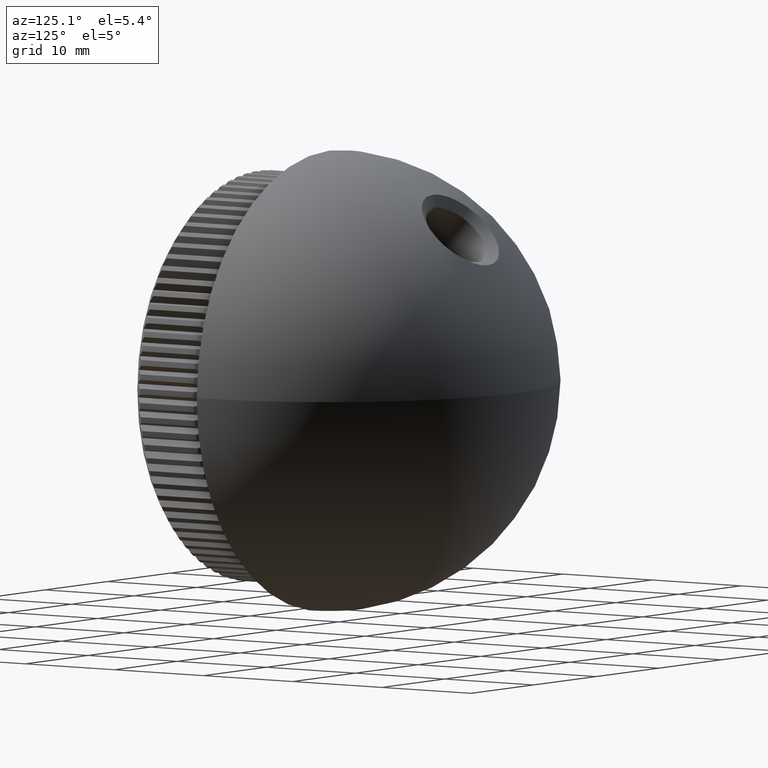
[diagram: clean part render]
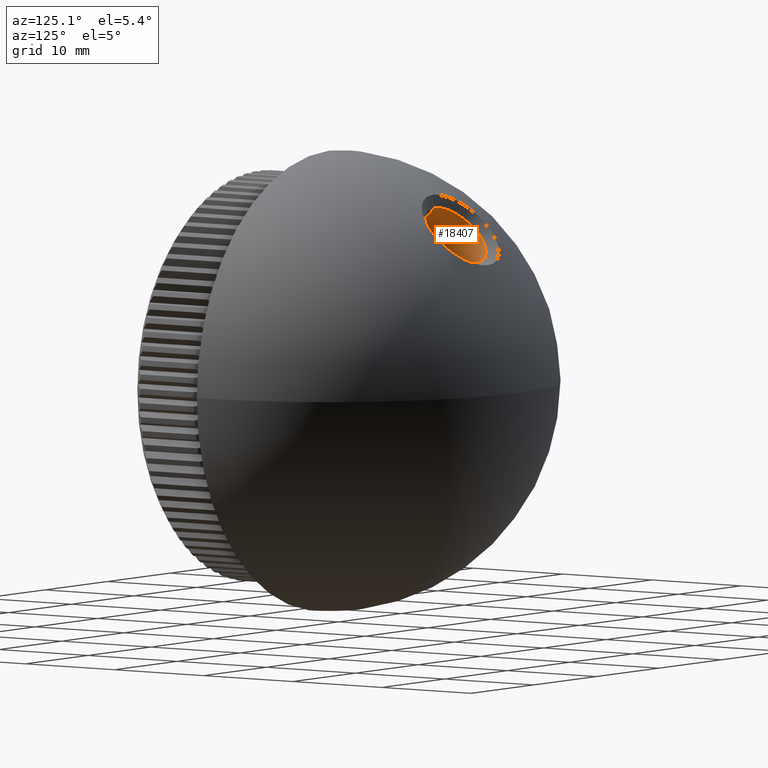
[diagram: same view with one face highlighted and labeled with its STEP entity id]
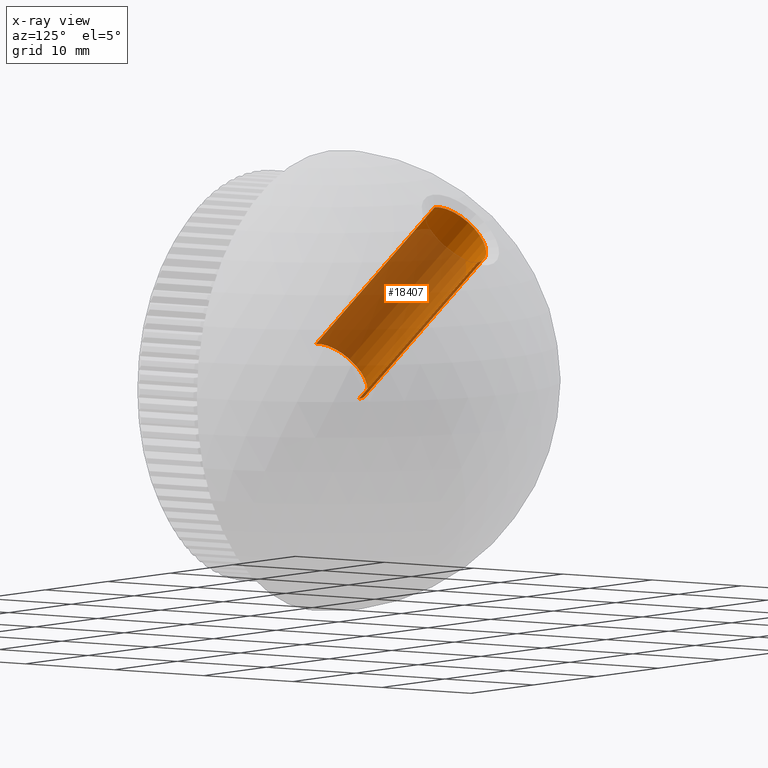
[diagram: x-ray of the same camera — body ghosted, the highlighted face saturated]
A machine part, auxiliary view. The second image highlights one B-rep face of the part: STEP entity #18407.
The next image is the same camera in x-ray: the body ghosted, the highlighted face saturated — about 83% of this face is hidden behind the body in this view.
In plain terms, the highlighted cylindrical surface (partial cylindrical patch) has radius 3.4 mm, axis along (-0, 0.7071, 0.7071).
Its self-contained STEP definition (entity closure, byte-faithful):
#90 = CARTESIAN_POINT ( 'NONE',  ( -1.096426340312313600E-015, 7.444365081389605600, 3.252691193458117100 ) ) ;
#1454 = EDGE_CURVE ( 'NONE', #11063, #16774, #21283, .T. ) ;
#1467 = AXIS2_PLACEMENT_3D ( 'NONE', #2601, #4259, #15270 ) ;
#2601 = CARTESIAN_POINT ( 'NONE',  ( -1.096426340312313600E-015, 9.848528137423858900, 0.8485281374238546900 ) ) ;
#2651 = DIRECTION ( 'NONE',  ( -0.0000000000000000000, 0.7071067811865489100, 0.7071067811865462400 ) ) ;
#4259 = DIRECTION ( 'NONE',  ( -0.0000000000000000000, 0.7071067811865487900, 0.7071067811865462400 ) ) ;
#5622 = DIRECTION ( 'NONE',  ( 0.0000000000000000000, -0.7071067811865450200, 0.7071067811865500200 ) ) ;
#5916 = AXIS2_PLACEMENT_3D ( 'NONE', #19409, #10416, #8740 ) ;
#6061 = CARTESIAN_POINT ( 'NONE',  ( -6.800464286022144300E-016, 26.39482681718908800, 12.58650070512051800 ) ) ;
#7690 = ORIENTED_EDGE ( 'NONE', *, *, #1454, .T. ) ;
#8127 = LINE ( 'NONE', #6061, #14118 ) ;
#8740 = DIRECTION ( 'NONE',  ( 0.0000000000000000000, -0.7071067811865460200, 0.7071067811865490200 ) ) ;
#9025 = DIRECTION ( 'NONE',  ( -0.0000000000000000000, 0.7071067811865489100, 0.7071067811865462400 ) ) ;
#10416 = DIRECTION ( 'NONE',  ( -0.0000000000000000000, 0.7071067811865487900, 0.7071067811865462400 ) ) ;
#10425 = CARTESIAN_POINT ( 'NONE',  ( -6.800464286022142300E-016, 12.25269119345811200, -1.555634918610407000 ) ) ;
#11063 = VERTEX_POINT ( 'NONE', #21753 ) ;
#11123 = CARTESIAN_POINT ( 'NONE',  ( -1.096426340312313600E-015, 20.77620721018298500, 16.58453332225144200 ) ) ;
#11150 = CARTESIAN_POINT ( 'NONE',  ( -1.096426340312313600E-015, 23.18037026621723100, 14.18037026621717800 ) ) ;
#11176 = AXIS2_PLACEMENT_3D ( 'NONE', #11150, #12973, #5622 ) ;
#11880 = VERTEX_POINT ( 'NONE', #90 ) ;
#12439 = EDGE_CURVE ( 'NONE', #21427, #11880, #15252, .T. ) ;
#12698 = VECTOR ( 'NONE', #9025, 999.9999999999998900 ) ;
#12973 = DIRECTION ( 'NONE',  ( 0.0000000000000000000, 0.7071067811865500200, 0.7071067811865450200 ) ) ;
#13087 = EDGE_CURVE ( 'NONE', #11880, #16774, #13236, .T. ) ;
#13236 = LINE ( 'NONE', #14359, #12698 ) ;
#14118 = VECTOR ( 'NONE', #2651, 999.9999999999998900 ) ;
#14122 = ORIENTED_EDGE ( 'NONE', *, *, #12439, .F. ) ;
#14359 = CARTESIAN_POINT ( 'NONE',  ( -1.096426340312313600E-015, 21.58650070512058500, 17.39482681718904200 ) ) ;
#15252 = CIRCLE ( 'NONE', #1467, 3.399999999999995000 ) ;
#15270 = DIRECTION ( 'NONE',  ( 0.0000000000000000000, -0.7071067811865462400, 0.7071067811865486800 ) ) ;
#15560 = FACE_OUTER_BOUND ( 'NONE', #22639, .T. ) ;
#16774 = VERTEX_POINT ( 'NONE', #11123 ) ;
#18407 = ADVANCED_FACE ( 'NONE', ( #15560 ), #20613, .F. ) ;
#19409 = CARTESIAN_POINT ( 'NONE',  ( -1.096426340312313600E-015, 23.99066376115483500, 14.99066376115478000 ) ) ;
#20613 = CYLINDRICAL_SURFACE ( 'NONE', #5916, 3.399999999999992400 ) ;
#21221 = ORIENTED_EDGE ( 'NONE', *, *, #13087, .F. ) ;
#21283 = CIRCLE ( 'NONE', #11176, 3.399999999999992400 ) ;
#21393 = EDGE_CURVE ( 'NONE', #21427, #11063, #8127, .T. ) ;
#21427 = VERTEX_POINT ( 'NONE', #10425 ) ;
#21753 = CARTESIAN_POINT ( 'NONE',  ( -6.800464286022144300E-016, 25.58453332225147700, 11.77620721018291200 ) ) ;
#21913 = ORIENTED_EDGE ( 'NONE', *, *, #21393, .T. ) ;
#22639 = EDGE_LOOP ( 'NONE', ( #14122, #21913, #7690, #21221 ) ) ;